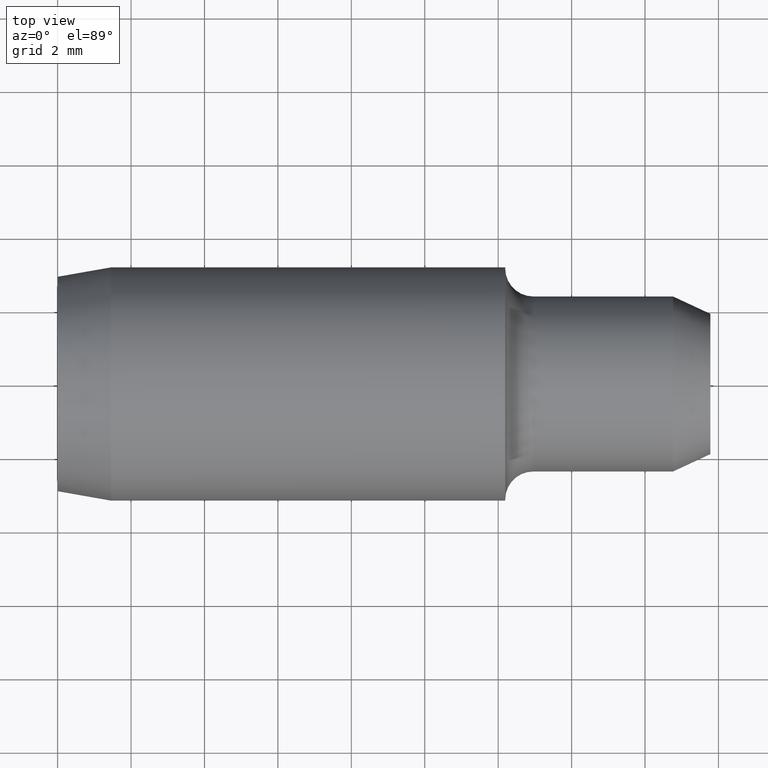
[diagram: clean part render]
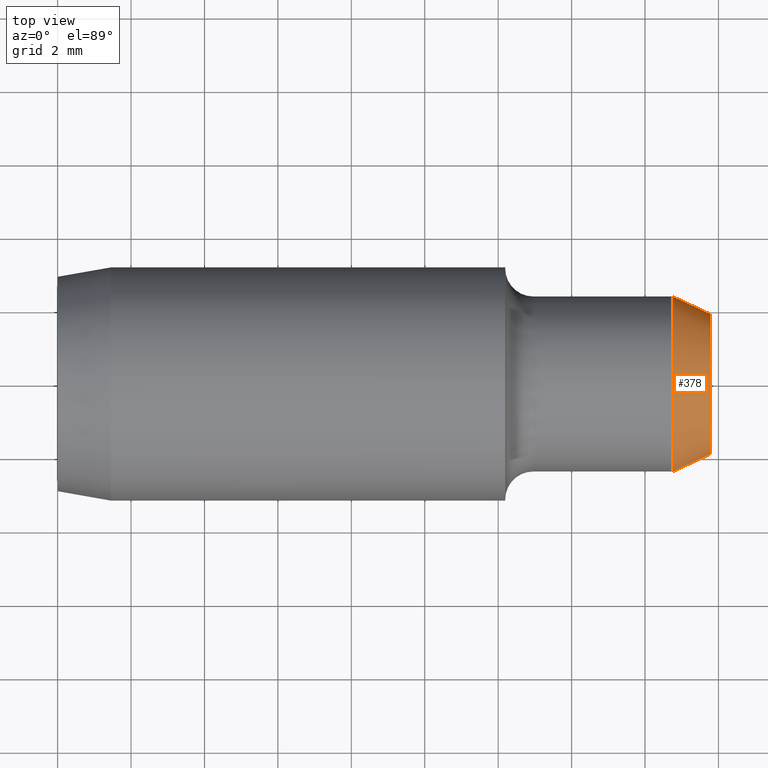
[diagram: same view with one face highlighted and labeled with its STEP entity id]
A machine part, top view. The second image highlights one B-rep face of the part: STEP entity #378.
In plain terms, the highlighted conical surface has half-angle 25 deg.
Its self-contained STEP definition (entity closure, byte-faithful):
#21 = EDGE_CURVE ( 'NONE', #281, #336, #244, .T. ) ;
#23 = EDGE_CURVE ( 'NONE', #260, #344, #308, .T. ) ;
#25 = EDGE_CURVE ( 'NONE', #260, #281, #301, .T. ) ;
#44 = EDGE_CURVE ( 'NONE', #344, #336, #282, .T. ) ;
#58 = AXIS2_PLACEMENT_3D ( 'NONE', #89, #120, #167 ) ;
#59 = AXIS2_PLACEMENT_3D ( 'NONE', #99, #168, #119 ) ;
#77 = AXIS2_PLACEMENT_3D ( 'NONE', #114, #115, #92 ) ;
#83 = CARTESIAN_POINT ( 'NONE',  ( 0.6599999999999999200, -0.09384999999999987800, 0.0000000000000000000 ) ) ;
#89 = CARTESIAN_POINT ( 'NONE',  ( 0.6599999999999999200, 8.082668874372529300E-017, 0.0000000000000000000 ) ) ;
#92 = DIRECTION ( 'NONE',  ( 0.0000000000000000000, -1.000000000000000000, 0.0000000000000000000 ) ) ;
#99 = CARTESIAN_POINT ( 'NONE',  ( 0.6999999999999999600, 8.572527594031472000E-017, 0.0000000000000000000 ) ) ;
#108 = CARTESIAN_POINT ( 'NONE',  ( 0.6999999999999999600, 0.07519769367380038600, 1.035118584804308900E-017 ) ) ;
#114 = CARTESIAN_POINT ( 'NONE',  ( 0.6599999999999999200, 8.082668874372529300E-017, 0.0000000000000000000 ) ) ;
#115 = DIRECTION ( 'NONE',  ( -1.000000000000000000, -1.224646799147353200E-016, 0.0000000000000000000 ) ) ;
#117 = CARTESIAN_POINT ( 'NONE',  ( 0.6599999999999999200, 0.09385000000000004400, 1.149331020999790400E-017 ) ) ;
#119 = DIRECTION ( 'NONE',  ( 0.0000000000000000000, 1.000000000000000000, 0.0000000000000000000 ) ) ;
#120 = DIRECTION ( 'NONE',  ( 1.000000000000000000, 1.224646799147353200E-016, -0.0000000000000000000 ) ) ;
#145 = DIRECTION ( 'NONE',  ( -0.9063077870366522700, 0.4226182617406941100, 5.175581015019595900E-017 ) ) ;
#148 = CARTESIAN_POINT ( 'NONE',  ( 0.6999999999999999600, -0.07519769367380022000, 0.0000000000000000000 ) ) ;
#151 = CARTESIAN_POINT ( 'NONE',  ( 0.6599999999999999200, 0.09385000000000004400, 1.149331020999790400E-017 ) ) ;
#159 = DIRECTION ( 'NONE',  ( -0.9063077870366522700, -0.4226182617406943900, 0.0000000000000000000 ) ) ;
#167 = DIRECTION ( 'NONE',  ( 0.0000000000000000000, 1.000000000000000000, 0.0000000000000000000 ) ) ;
#168 = DIRECTION ( 'NONE',  ( 1.000000000000000000, 1.224646799147353200E-016, -0.0000000000000000000 ) ) ;
#214 = CARTESIAN_POINT ( 'NONE',  ( 0.6599999999999999200, -0.09384999999999987800, 0.0000000000000000000 ) ) ;
#244 = CIRCLE ( 'NONE', #58, 0.09384999999999996100 ) ;
#260 = VERTEX_POINT ( 'NONE', #108 ) ;
#263 = VECTOR ( 'NONE', #159, 39.37007874015748100 ) ;
#264 = FACE_OUTER_BOUND ( 'NONE', #353, .T. ) ;
#271 = CONICAL_SURFACE ( 'NONE', #77, 0.09384999999999996100, 0.4363323129985767200 ) ;
#281 = VERTEX_POINT ( 'NONE', #151 ) ;
#282 = LINE ( 'NONE', #214, #263 ) ;
#296 = VECTOR ( 'NONE', #145, 39.37007874015748100 ) ;
#301 = LINE ( 'NONE', #117, #296 ) ;
#308 = CIRCLE ( 'NONE', #59, 0.07519769367380030300 ) ;
#320 = ORIENTED_EDGE ( 'NONE', *, *, #23, .F. ) ;
#336 = VERTEX_POINT ( 'NONE', #83 ) ;
#341 = ORIENTED_EDGE ( 'NONE', *, *, #25, .T. ) ;
#344 = VERTEX_POINT ( 'NONE', #148 ) ;
#353 = EDGE_LOOP ( 'NONE', ( #320, #341, #360, #363 ) ) ;
#360 = ORIENTED_EDGE ( 'NONE', *, *, #21, .T. ) ;
#363 = ORIENTED_EDGE ( 'NONE', *, *, #44, .F. ) ;
#378 = ADVANCED_FACE ( 'NONE', ( #264 ), #271, .T. ) ;